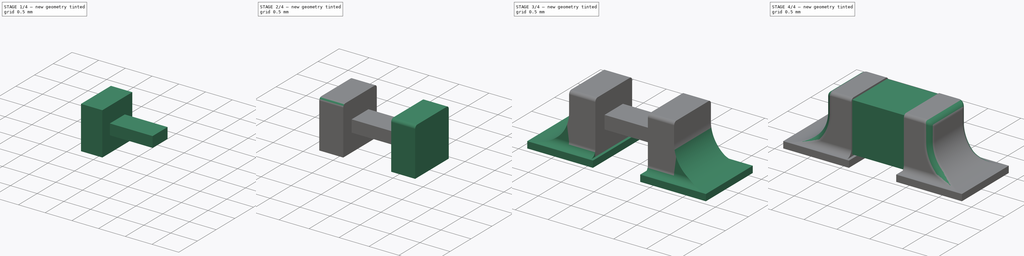
[diagram: build sequence overview — one tinted view per stage of 4, left to right]
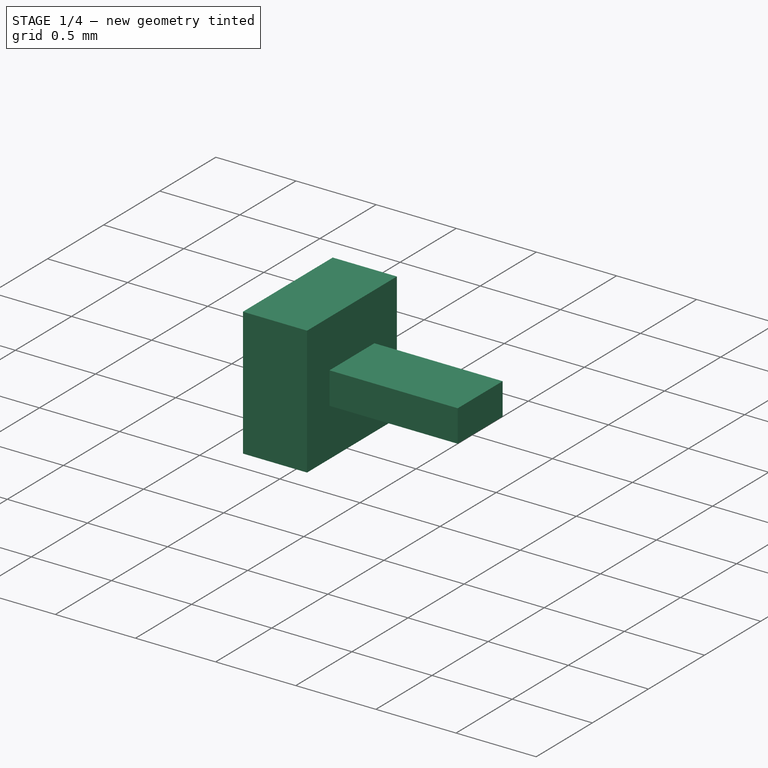
[diagram: stage 1 of 4 — iso view after this stage's code; geometry added in this stage tinted green]
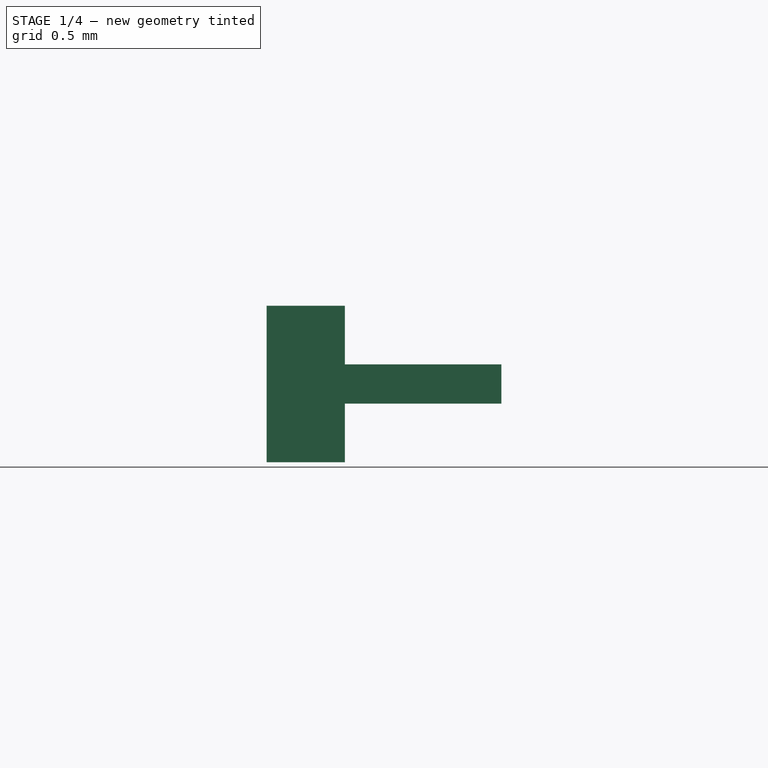
[diagram: stage 1 of 4 — front view after this stage's code; geometry added in this stage tinted green]
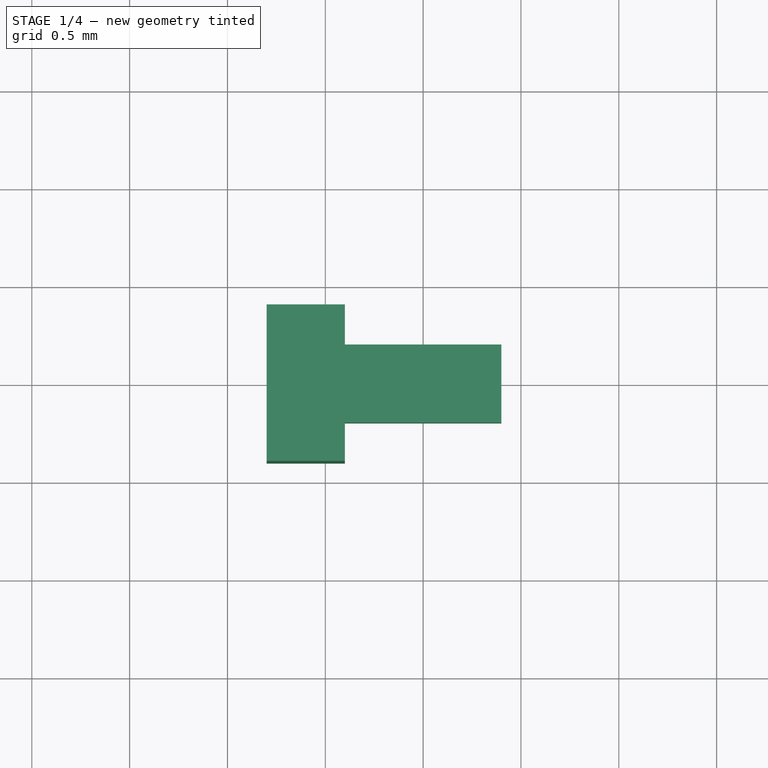
[diagram: stage 1 of 4 — top view after this stage's code; geometry added in this stage tinted green]
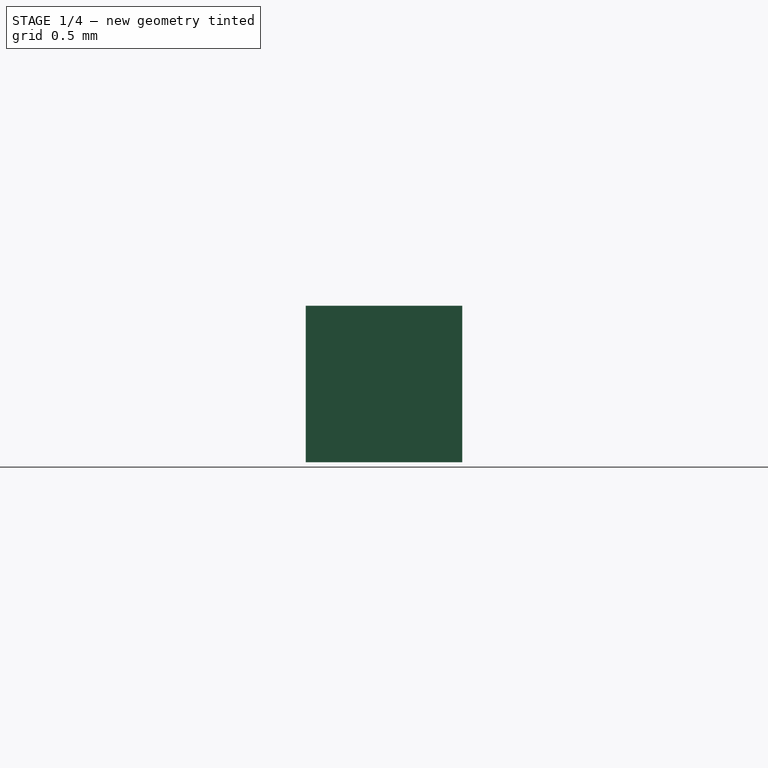
[diagram: stage 1 of 4 — right view after this stage's code; geometry added in this stage tinted green]
FCSTD DOCUMENT  (FreeCAD 0.18R4 (GitTag))
Label: 603 cap on pad
License: All rights reserved
LicenseURL: http://en.wikipedia.org/wiki/All_rights_reserved
objects: Sketcher::SketchObject×4, PartDesign::Pad×4, PartDesign::Fillet×4, PartDesign::Body×2, PartDesign::Mirrored×1, App::Part×1
note: 19 computed .brp shape members not serialized (recipe doc carries the construction recipe); baked Part::Feature solids carry a one-line shape summary decoded from their .brp

FEATURE [PartDesign::Body] Body
  Group = -> [Sketch,Pad]
  Origin = -> Origin001
  Tip = -> Pad
FEATURE [Sketcher::SketchObject] Sketch001
  MapMode = 5
  Support = -> [XY_Plane002]
  sketch-geometry (4):
    g0: LineSegment StartX=-0.4 StartY=0.2 StartZ=0 EndX=0.4 EndY=0.2 EndZ=0
    g1: LineSegment StartX=0.4 StartY=0.2 StartZ=0 EndX=0.4 EndY=-0.2 EndZ=0
    g2: LineSegment StartX=0.4 StartY=-0.2 StartZ=0 EndX=-0.4 EndY=-0.2 EndZ=0
    g3: LineSegment StartX=-0.4 StartY=0.2 StartZ=0 EndX=-0.4 EndY=-0.2 EndZ=0
  constraints (11):
    c: Coincident(g0,g1)
    c: Coincident(g1,g2)
    c: Horizontal(g0)
    c: Horizontal(g2)
    c: Vertical(g1)
    c: Coincident(g3,g0)
    c: Coincident(g3,g2)
    c: Vertical(g3)
    c: Symmetric(g1,g2,g-1)
    c: DistanceX(g0,g0) = 0.8
    c: DistanceY(g1,g1) = 0.4
FEATURE [PartDesign::Pad] Pad001
  Length = 0.2
  Length2 = 100
  Midplane = true
  Profile = -> Sketch001
  Refine = true
  Type = 0
FEATURE [Sketcher::SketchObject] Sketch002
  MapMode = 5
  Placement = pos=(-0.4,0,0) rot=(0.57735,-0.57735,-0.57735;2.0944rad)
  Support = -> [Pad001]
  sketch-geometry (4):
    g0: LineSegment StartX=-0.4 StartY=0.4 StartZ=0 EndX=0.4 EndY=0.4 EndZ=0
    g1: LineSegment StartX=0.4 StartY=0.4 StartZ=0 EndX=0.4 EndY=-0.4 EndZ=0
    g2: LineSegment StartX=0.4 StartY=-0.4 StartZ=0 EndX=-0.4 EndY=-0.4 EndZ=0
    g3: LineSegment StartX=-0.4 StartY=-0.4 StartZ=0 EndX=-0.4 EndY=0.4 EndZ=0
  constraints (11):
    c: Coincident(g0,g1)
    c: Coincident(g1,g2)
    c: Coincident(g2,g3)
    c: Coincident(g3,g0)
    c: Horizontal(g0)
    c: Horizontal(g2)
    c: Vertical(g1)
    c: Vertical(g3)
    c: Symmetric(g1,g0,g-1)
    c: Equal(g1,g0)
    c: DistanceX(g0,g0) = 0.8
FEATURE [PartDesign::Pad] Pad002
  BaseFeature = -> Pad001
  Length = 0.4
  Length2 = 100
  Profile = -> Sketch002
  Refine = true
  Type = 0
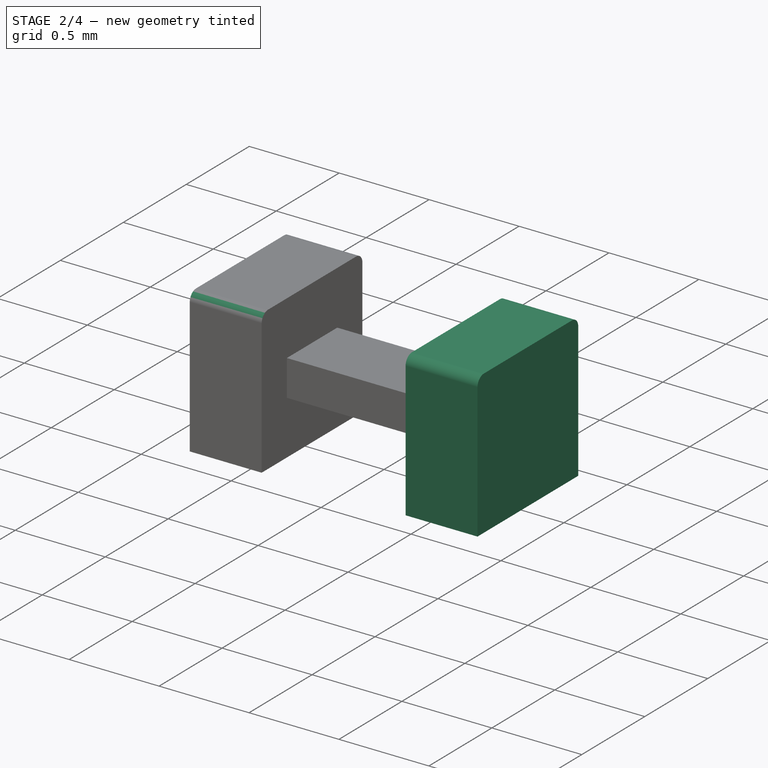
[diagram: stage 2 of 4 — iso view after this stage's code; geometry added in this stage tinted green]
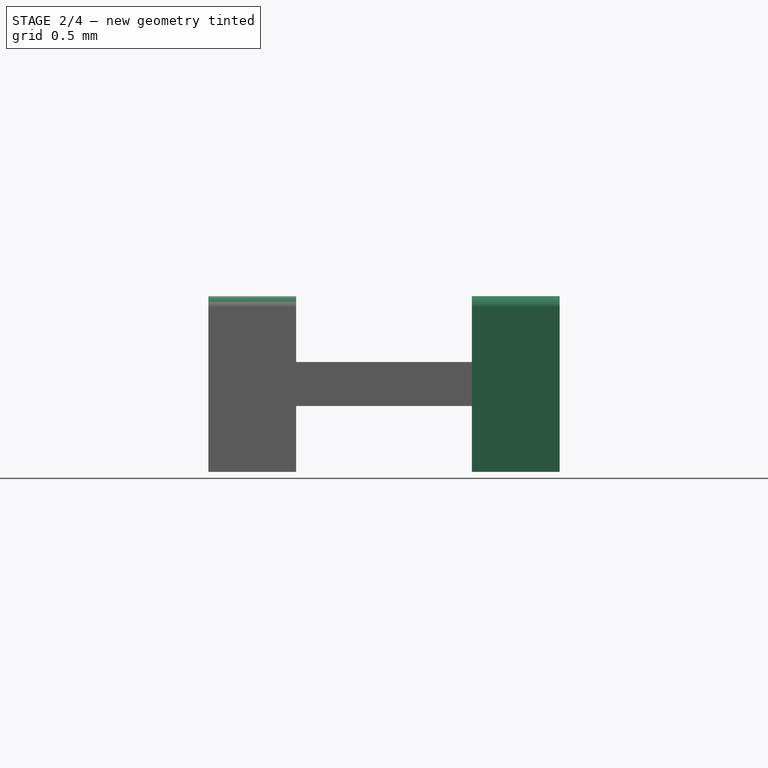
[diagram: stage 2 of 4 — front view after this stage's code; geometry added in this stage tinted green]
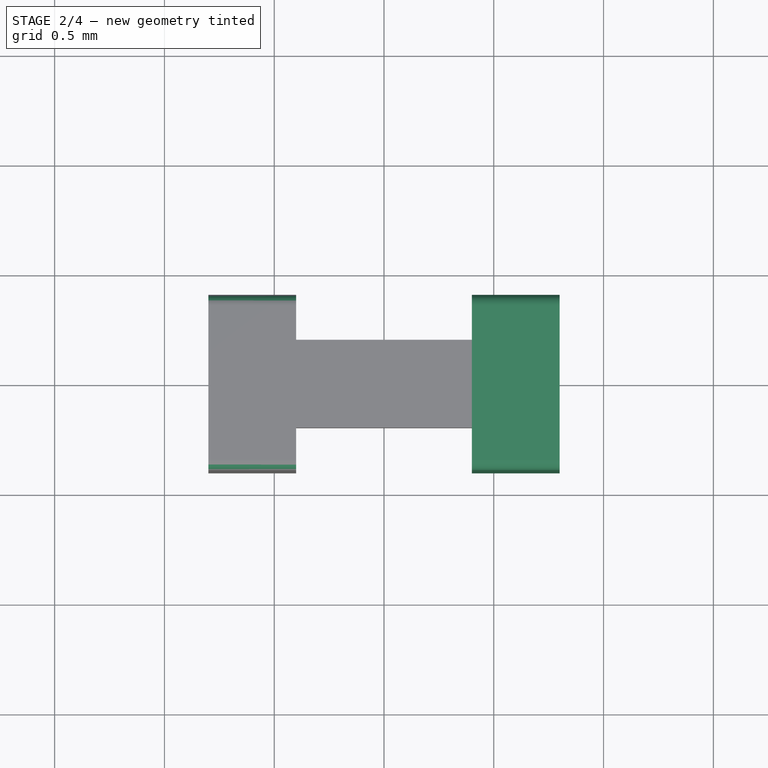
[diagram: stage 2 of 4 — top view after this stage's code; geometry added in this stage tinted green]
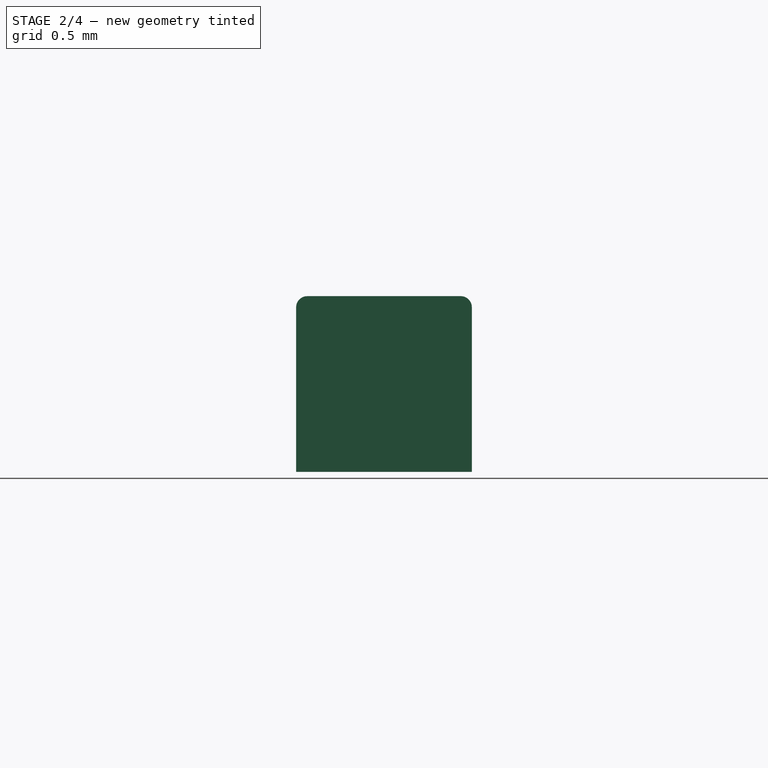
[diagram: stage 2 of 4 — right view after this stage's code; geometry added in this stage tinted green]
FEATURE [PartDesign::Mirrored] Mirrored
  BaseFeature = -> Pad002
  MirrorPlane = -> YZ_Plane002
  Originals = -> [Pad002]
  Refine = true
FEATURE [PartDesign::Fillet] Fillet
  Base = -> Mirrored [Edge30,Edge29,Edge2,Edge1]
  BaseFeature = -> Mirrored
  Radius = 0.05
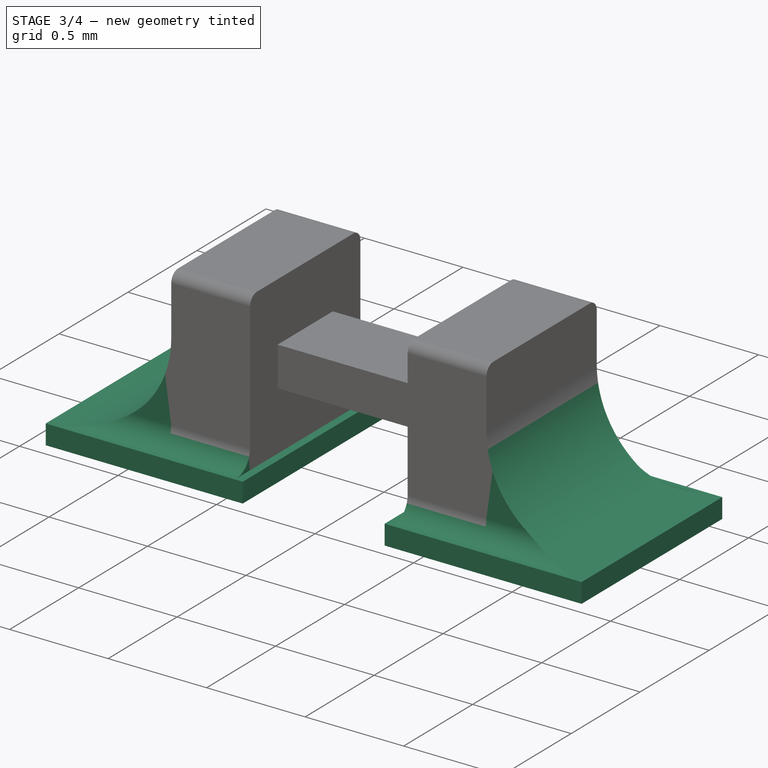
[diagram: stage 3 of 4 — iso view after this stage's code; geometry added in this stage tinted green]
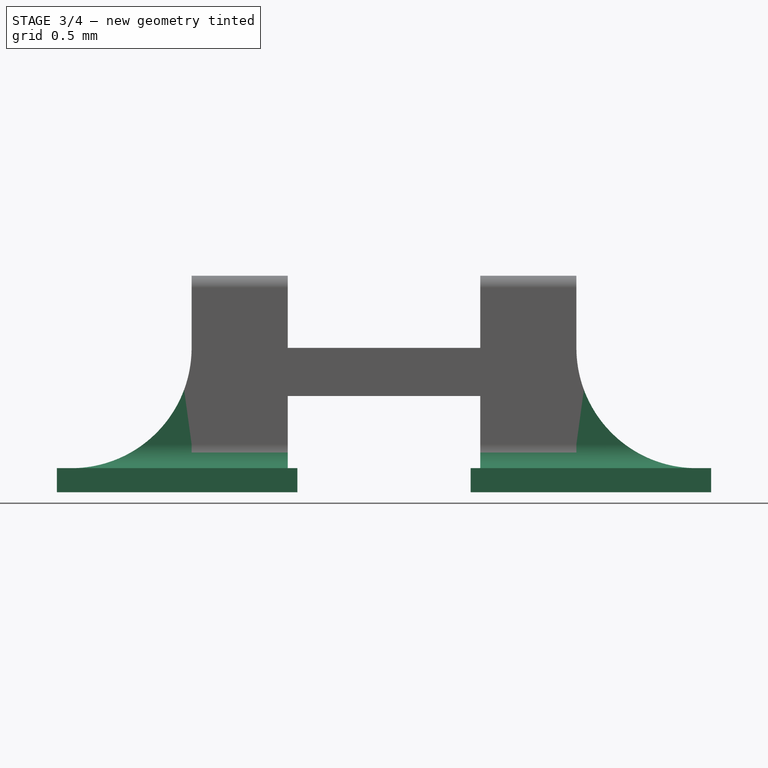
[diagram: stage 3 of 4 — front view after this stage's code; geometry added in this stage tinted green]
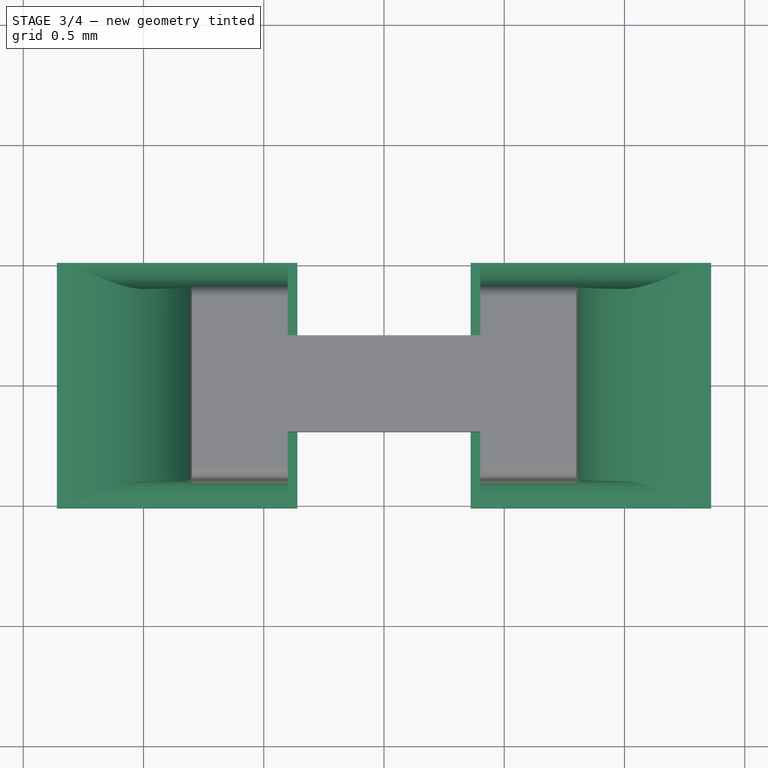
[diagram: stage 3 of 4 — top view after this stage's code; geometry added in this stage tinted green]
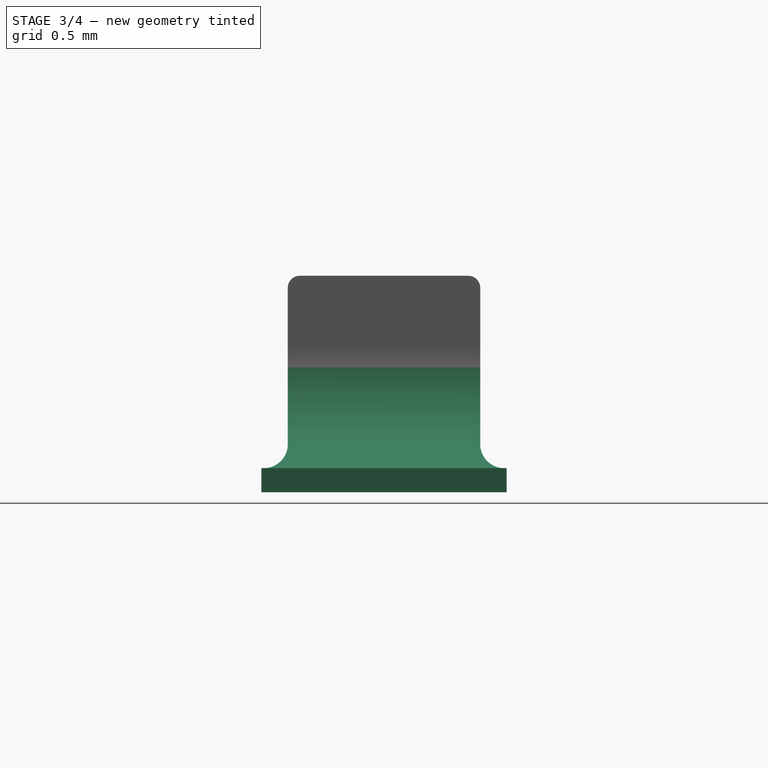
[diagram: stage 3 of 4 — right view after this stage's code; geometry added in this stage tinted green]
FEATURE [Sketcher::SketchObject] Sketch003
  MapMode = 5
  Placement = pos=(1e-16,0,-0.4) rot=(1,0,0;3.14159rad)
  Support = -> [Fillet]
  sketch-geometry (8):
    g0: LineSegment StartX=-1.36 StartY=0.51 StartZ=0 EndX=-0.36 EndY=0.51 EndZ=0
    g1: LineSegment StartX=-0.36 StartY=0.51 StartZ=0 EndX=-0.36 EndY=-0.51 EndZ=0
    g2: LineSegment StartX=-0.36 StartY=-0.51 StartZ=0 EndX=-1.36 EndY=-0.51 EndZ=0
    g3: LineSegment StartX=-1.36 StartY=-0.51 StartZ=0 EndX=-1.36 EndY=0.51 EndZ=0
    g4: LineSegment StartX=0.36 StartY=0.51 StartZ=0 EndX=1.36 EndY=0.51 EndZ=0
    g5: LineSegment StartX=1.36 StartY=0.51 StartZ=0 EndX=1.36 EndY=-0.51 EndZ=0
    g6: LineSegment StartX=1.36 StartY=-0.51 StartZ=0 EndX=0.36 EndY=-0.51 EndZ=0
    g7: LineSegment StartX=0.36 StartY=-0.51 StartZ=0 EndX=0.36 EndY=0.51 EndZ=0
  constraints (22):
    c: Coincident(g0,g1)
    c: Coincident(g1,g2)
    c: Coincident(g2,g3)
    c: Coincident(g3,g0)
    c: Horizontal(g0)
    c: Horizontal(g2)
    c: Vertical(g3)
    c: Coincident(g4,g5)
    c: Coincident(g5,g6)
    c: Coincident(g6,g7)
    c: Coincident(g7,g4)
    c: Horizontal(g4)
    c: Horizontal(g6)
    c: Vertical(g5)
    c: Vertical(g7)
    c: Equal(g4,g0)
    c: Symmetric(g0,g4,g-2)
    c: Equal(g7,g1)
    c: DistanceX(g0,g-1) = 0.36
    c: Symmetric(g1,g0,g-1)
    c: DistanceY(g5,g5) = 1.02
    c: DistanceX(g6,g6) = 1
FEATURE [PartDesign::Pad] Pad003
  BaseFeature = -> Fillet
  Length = 0.1
  Length2 = 100
  Profile = -> Sketch003
  Refine = true
  Type = 0
FEATURE [PartDesign::Fillet] Fillet001
  Base = -> Pad003 [Edge64,Edge13]
  BaseFeature = -> Pad003
  Radius = 0.5
FEATURE [PartDesign::Fillet] Fillet002
  Base = -> Fillet001 [Edge67,Edge63,Edge6,Edge2]
  BaseFeature = -> Fillet001
  Radius = 0.1
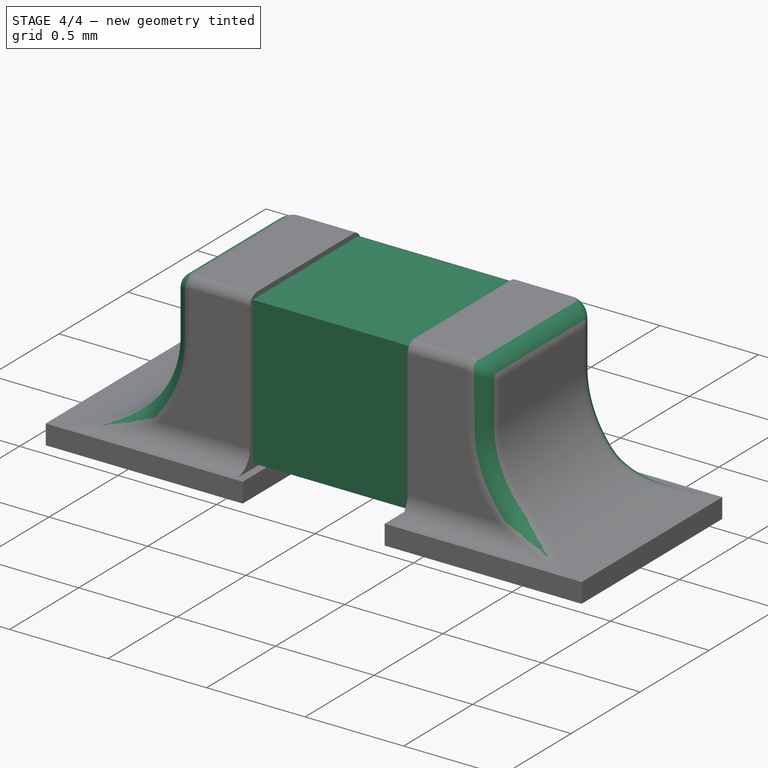
[diagram: stage 4 of 4 — iso view after this stage's code; geometry added in this stage tinted green]
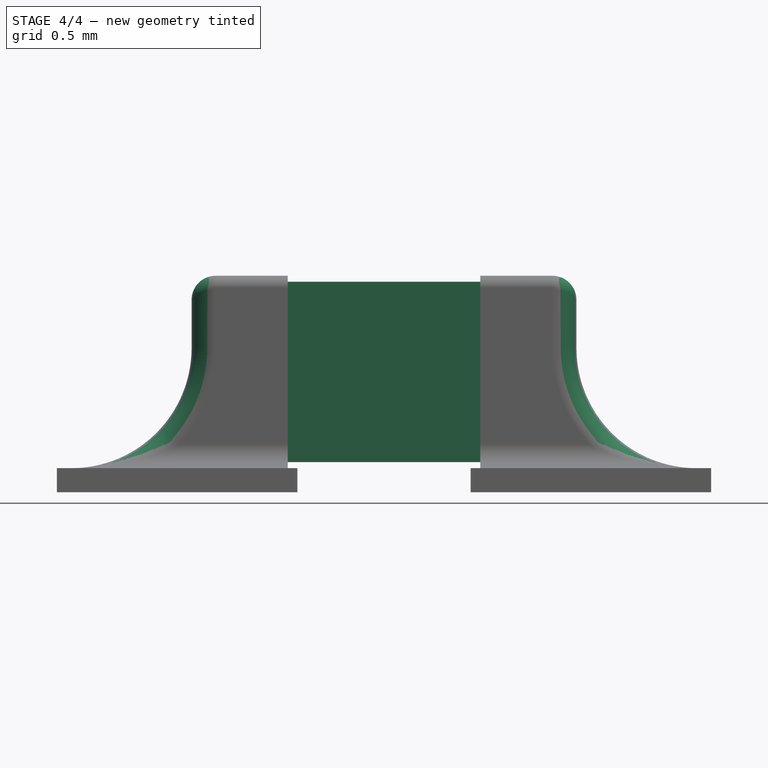
[diagram: stage 4 of 4 — front view after this stage's code; geometry added in this stage tinted green]
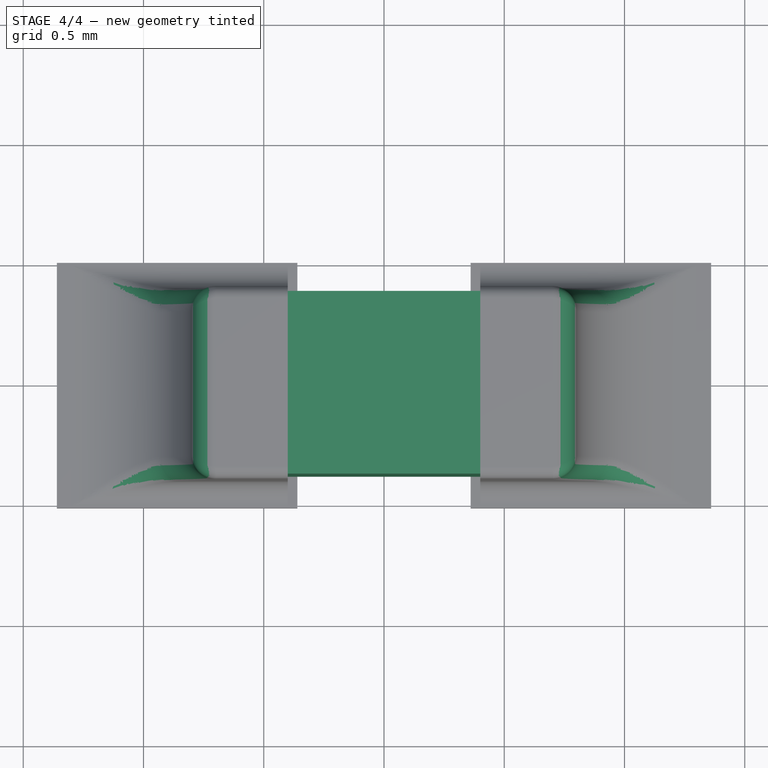
[diagram: stage 4 of 4 — top view after this stage's code; geometry added in this stage tinted green]
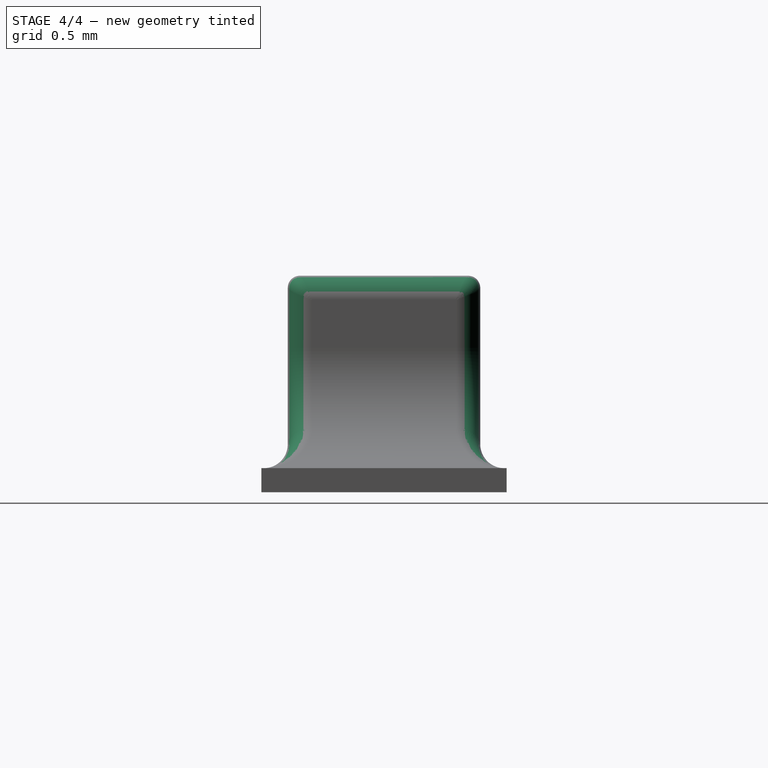
[diagram: stage 4 of 4 — right view after this stage's code; geometry added in this stage tinted green]
FEATURE [Sketcher::SketchObject] Sketch
  MapMode = 5
  Support = -> [XY_Plane001]
  sketch-geometry (4):
    g0: LineSegment StartX=-0.4 StartY=0.38 StartZ=0 EndX=0.4 EndY=0.38 EndZ=0
    g1: LineSegment StartX=0.4 StartY=0.38 StartZ=0 EndX=0.4 EndY=-0.38 EndZ=0
    g2: LineSegment StartX=0.4 StartY=-0.38 StartZ=0 EndX=-0.4 EndY=-0.38 EndZ=0
    g3: LineSegment StartX=-0.4 StartY=-0.38 StartZ=0 EndX=-0.4 EndY=0.38 EndZ=0
  constraints (11):
    c: Coincident(g0,g1)
    c: Coincident(g1,g2)
    c: Coincident(g2,g3)
    c: Coincident(g3,g0)
    c: Horizontal(g0)
    c: Horizontal(g2)
    c: Vertical(g1)
    c: Vertical(g3)
    c: Symmetric(g0,g1,g-1)
    c: DistanceX(g0,g0) = 0.8
    c: DistanceY(g1,g1) = 0.76
FEATURE [PartDesign::Pad] Pad
  Length = 0.75
  Length2 = 100
  Midplane = true
  Profile = -> Sketch
  Refine = true
  Type = 0
FEATURE [PartDesign::Fillet] Fillet003
  Base = -> Fillet002 [Edge74,Edge45]
  BaseFeature = -> Fillet002
  Radius = 0.1
FEATURE [PartDesign::Body] Body001
  Group = -> [Sketch001,Pad001,Sketch002,Pad002,Mirrored,Fillet,Sketch003,Pad003,Fillet001,Fillet002,Fillet003]
  Origin = -> Origin002
  Tip = -> Fillet003
FEATURE [App::Part] Part
  Group = -> [Body,Body001]
  Origin = -> Origin
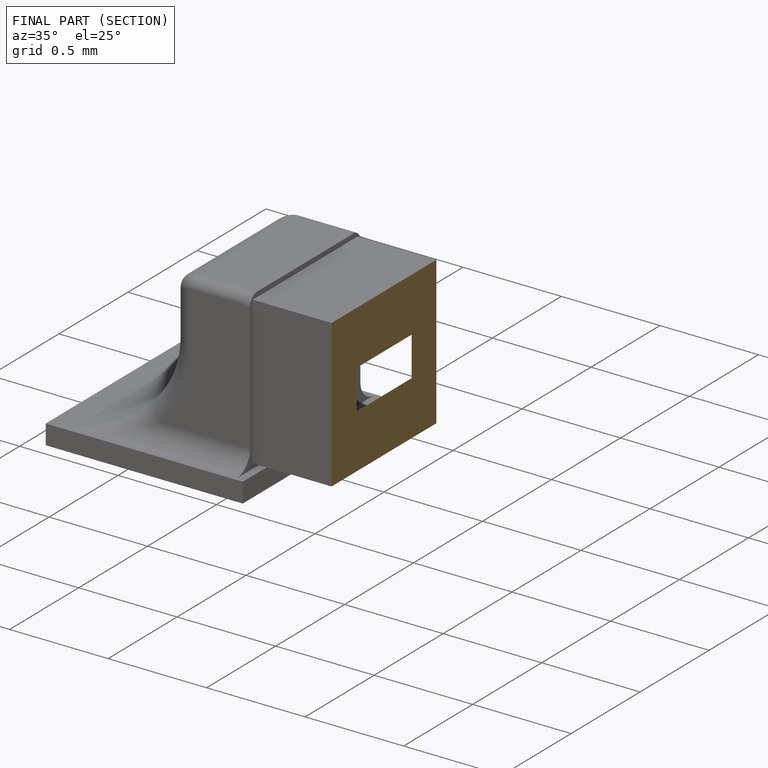
[diagram: finished part — half-section view (interior)]
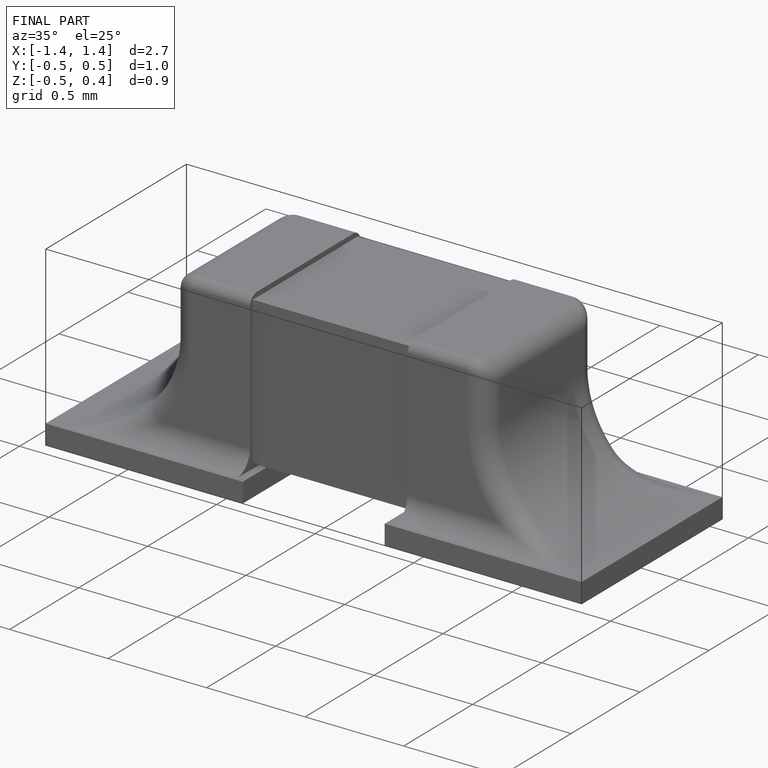
[diagram: finished part — iso view with bounding-box wireframe]
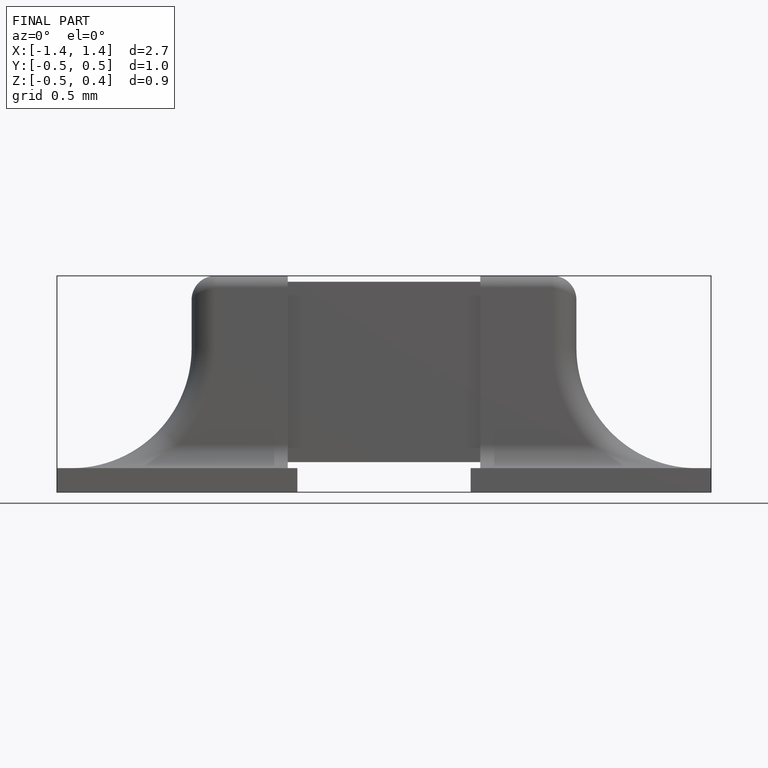
[diagram: finished part — front view with bounding-box wireframe]
